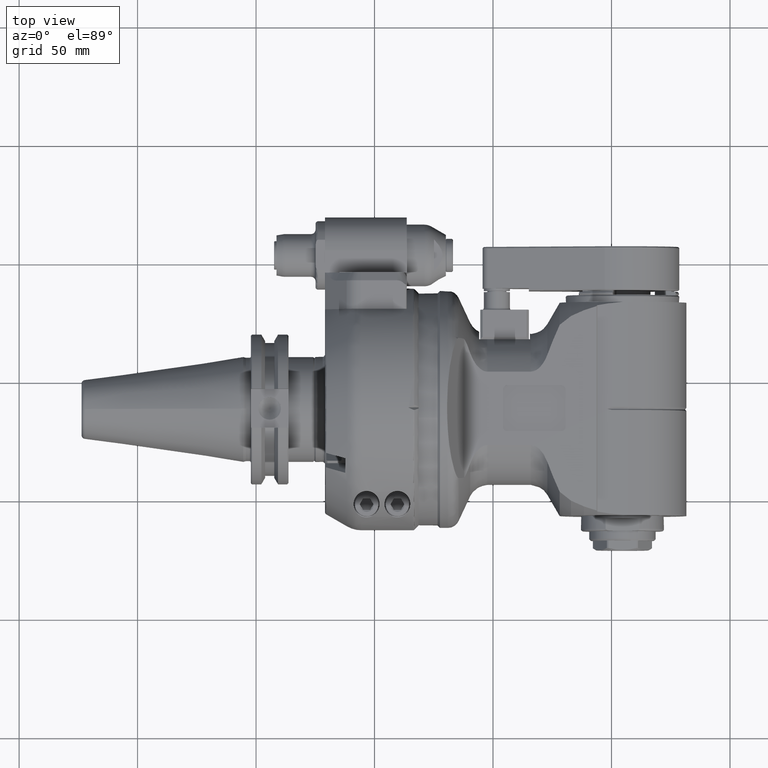
[diagram: clean part render]
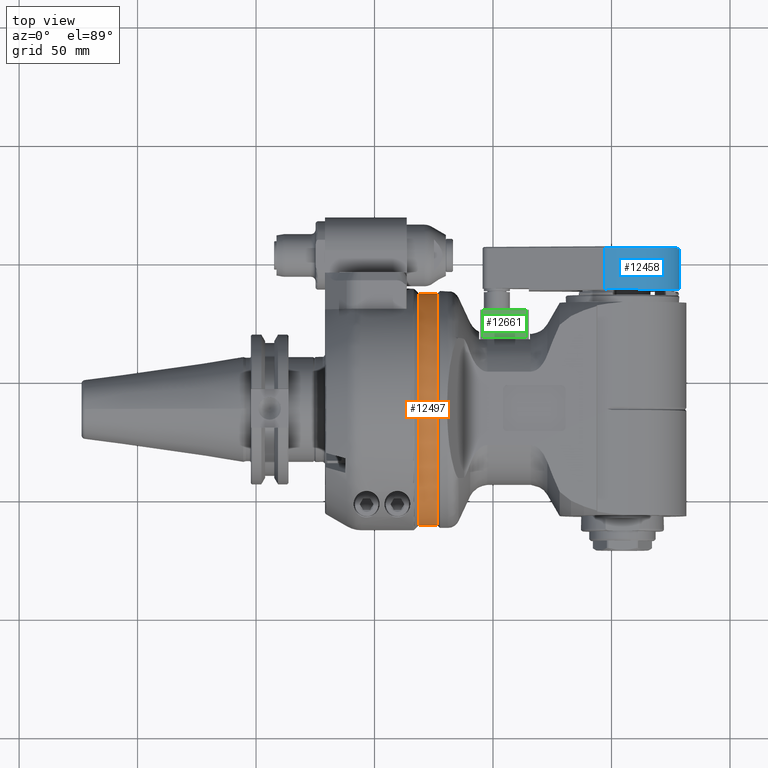
[diagram: same view with three faces highlighted in distinct colors, each labeled with its STEP entity id]
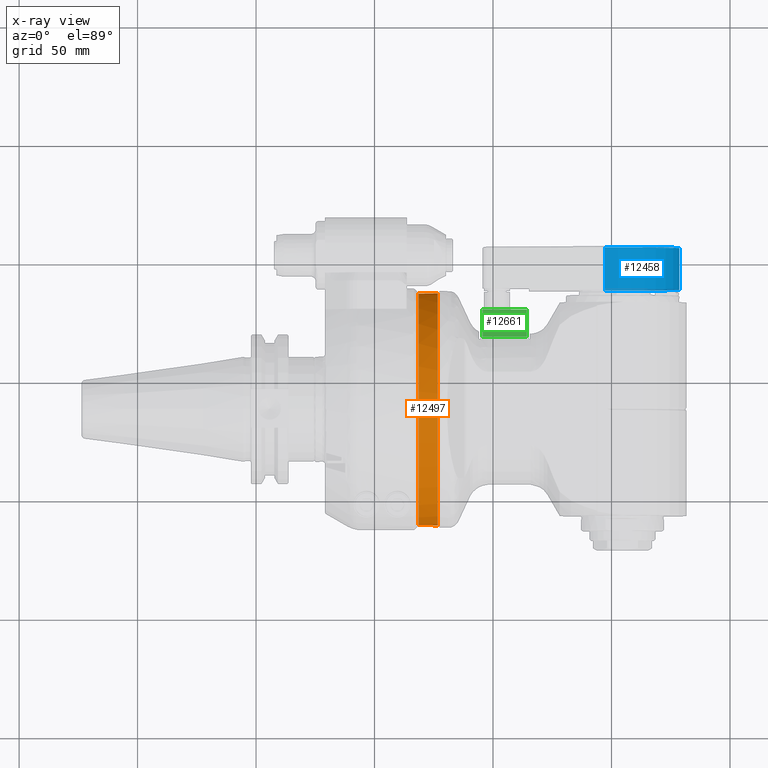
[diagram: x-ray of the same camera — body ghosted, the three highlighted faces saturated]
A machine part, top view with three faces highlighted in distinct colors.
The next image is the same camera in x-ray (body ghosted, the three faces saturated) — at least one of them is partly hidden behind the body in this view.
Their STEP definitions:

[orange] entity #12497 — the highlighted cylindrical surface (bore or boss wall) has radius 49 mm, axis along (1, 0, 0).
#918=CYLINDRICAL_SURFACE('',#13781,49.);
#1201=CIRCLE('',#13779,49.);
#1202=CIRCLE('',#13780,49.);
#1203=CIRCLE('',#13782,49.);
#1930=FACE_OUTER_BOUND('',#2721,.T.);
#2721=EDGE_LOOP('',(#8760,#8761,#8762,#8763,#8764));
#3676=LINE('',#20074,#4521);
#4521=VECTOR('',#15654,49.);
#5430=VERTEX_POINT('',#20067);
#5431=VERTEX_POINT('',#20069);
#5432=VERTEX_POINT('',#20073);
#6732=EDGE_CURVE('',#5430,#5431,#1201,.T.);
#6733=EDGE_CURVE('',#5431,#5430,#1202,.T.);
#6734=EDGE_CURVE('',#5431,#5432,#3676,.T.);
#6735=EDGE_CURVE('',#5432,#5432,#1203,.T.);
#8760=ORIENTED_EDGE('',*,*,#6733,.F.);
#8761=ORIENTED_EDGE('',*,*,#6734,.T.);
#8762=ORIENTED_EDGE('',*,*,#6735,.F.);
#8763=ORIENTED_EDGE('',*,*,#6734,.F.);
#8764=ORIENTED_EDGE('',*,*,#6732,.F.);
#12497=ADVANCED_FACE('',(#1930),#918,.T.);
#13779=AXIS2_PLACEMENT_3D('',#20070,#15648,#15649);
#13780=AXIS2_PLACEMENT_3D('',#20071,#15650,#15651);
#13781=AXIS2_PLACEMENT_3D('',#20072,#15652,#15653);
#13782=AXIS2_PLACEMENT_3D('',#20075,#15655,#15656);
#15648=DIRECTION('center_axis',(1.,0.,0.));
#15649=DIRECTION('ref_axis',(0.,-1.,0.));
#15650=DIRECTION('center_axis',(1.,0.,0.));
#15651=DIRECTION('ref_axis',(0.,-1.,0.));
#15652=DIRECTION('center_axis',(1.,0.,0.));
#15653=DIRECTION('ref_axis',(0.,0.0871557427476639,-0.996194698091745));
#15654=DIRECTION('',(-1.,0.,0.));
#15655=DIRECTION('center_axis',(-1.,0.,0.));
#15656=DIRECTION('ref_axis',(0.,-0.0871557427476639,0.996194698091745));
#20067=CARTESIAN_POINT('',(12.,49.,6.00076931582203E-15));
#20069=CARTESIAN_POINT('',(12.,-4.270631394635,48.8135402065));
#20070=CARTESIAN_POINT('Origin',(12.,0.,0.));
#20071=CARTESIAN_POINT('Origin',(12.,0.,0.));
#20072=CARTESIAN_POINT('Origin',(8.1,0.,0.));
#20073=CARTESIAN_POINT('',(4.000000000002,-4.270631394635,48.8135402065));
#20074=CARTESIAN_POINT('',(8.1,-4.27063139463554,48.8135402064955));
#20075=CARTESIAN_POINT('Origin',(4.000000000002,0.,0.));

[blue] entity #12458 — the highlighted cylindrical surface (partial cylindrical patch) has radius 24 mm, axis along (-0, 1, -0).
#908=CYLINDRICAL_SURFACE('',#13693,24.);
#1159=CIRCLE('',#13688,24.);
#1160=CIRCLE('',#13694,24.);
#1891=FACE_OUTER_BOUND('',#2674,.T.);
#2674=EDGE_LOOP('',(#8512,#8513,#8514,#8515));
#3611=LINE('',#19450,#4456);
#3612=LINE('',#19454,#4457);
#4456=VECTOR('',#15409,17.5);
#4457=VECTOR('',#15414,17.5);
#5306=VERTEX_POINT('',#19425);
#5307=VERTEX_POINT('',#19427);
#5314=VERTEX_POINT('',#19448);
#5315=VERTEX_POINT('',#19453);
#6566=EDGE_CURVE('',#5307,#5306,#1159,.T.);
#6578=EDGE_CURVE('',#5306,#5314,#3611,.T.);
#6579=EDGE_CURVE('',#5315,#5307,#3612,.T.);
#6580=EDGE_CURVE('',#5315,#5314,#1160,.T.);
#8512=ORIENTED_EDGE('',*,*,#6579,.T.);
#8513=ORIENTED_EDGE('',*,*,#6566,.T.);
#8514=ORIENTED_EDGE('',*,*,#6578,.T.);
#8515=ORIENTED_EDGE('',*,*,#6580,.F.);
#12458=ADVANCED_FACE('',(#1891),#908,.T.);
#13688=AXIS2_PLACEMENT_3D('',#19428,#15390,#15391);
#13693=AXIS2_PLACEMENT_3D('',#19452,#15412,#15413);
#13694=AXIS2_PLACEMENT_3D('',#19455,#15415,#15416);
#15390=DIRECTION('center_axis',(0.,1.,0.));
#15391=DIRECTION('ref_axis',(-0.309016994374891,0.,0.951056516295172));
#15409=DIRECTION('',(0.,1.,0.));
#15412=DIRECTION('center_axis',(0.,1.,0.));
#15413=DIRECTION('ref_axis',(1.,0.,0.));
#15414=DIRECTION('',(0.,-1.,0.));
#15415=DIRECTION('center_axis',(0.,1.,0.));
#15416=DIRECTION('ref_axis',(-0.309016994374891,0.,0.951056516295172));
#19425=CARTESIAN_POINT('',(82.583592135,50.5,-22.82535639108));
#19427=CARTESIAN_POINT('',(82.583592135,50.5,22.82535639108));
#19428=CARTESIAN_POINT('Origin',(90.,50.5,0.));
#19448=CARTESIAN_POINT('',(82.583592135,68.,-22.82535639108));
#19450=CARTESIAN_POINT('',(82.583592135,50.5,-22.82535639108));
#19452=CARTESIAN_POINT('Origin',(90.,50.,0.));
#19453=CARTESIAN_POINT('',(82.583592135,68.,22.82535639108));
#19454=CARTESIAN_POINT('',(82.583592135,68.,22.82535639108));
#19455=CARTESIAN_POINT('Origin',(90.,68.,0.));

[green] entity #12661 — the highlighted planar face has unit normal (0, -0, -1).
#2094=FACE_OUTER_BOUND('',#2905,.T.);
#2905=EDGE_LOOP('',(#9497,#9498,#9499,#9500));
#3638=LINE('',#19544,#4483);
#3643=LINE('',#19554,#4488);
#3646=LINE('',#19560,#4491);
#3821=LINE('',#20964,#4666);
#4483=VECTOR('',#15512,18.5);
#4488=VECTOR('',#15521,11.5);
#4491=VECTOR('',#15526,18.5);
#4666=VECTOR('',#16409,11.5);
#5342=VERTEX_POINT('',#19541);
#5343=VERTEX_POINT('',#19543);
#5346=VERTEX_POINT('',#19553);
#5348=VERTEX_POINT('',#19559);
#6622=EDGE_CURVE('',#5343,#5342,#3638,.T.);
#6627=EDGE_CURVE('',#5343,#5346,#3643,.T.);
#6630=EDGE_CURVE('',#5348,#5346,#3646,.T.);
#7068=EDGE_CURVE('',#5342,#5348,#3821,.T.);
#9497=ORIENTED_EDGE('',*,*,#6622,.T.);
#9498=ORIENTED_EDGE('',*,*,#7068,.T.);
#9499=ORIENTED_EDGE('',*,*,#6630,.T.);
#9500=ORIENTED_EDGE('',*,*,#6627,.F.);
#12217=PLANE('',#14087);
#12661=ADVANCED_FACE('',(#2094),#12217,.F.);
#14087=AXIS2_PLACEMENT_3D('',#20965,#16410,#16411);
#15512=DIRECTION('',(-1.,0.,0.));
#15521=DIRECTION('',(0.,-1.,0.));
#15526=DIRECTION('',(1.,0.,0.));
#16409=DIRECTION('',(0.,-1.,0.));
#16410=DIRECTION('center_axis',(0.,0.,-1.));
#16411=DIRECTION('ref_axis',(1.,0.,0.));
#19541=CARTESIAN_POINT('',(30.99999995534,41.9,12.99999983062));
#19543=CARTESIAN_POINT('',(49.49999995534,41.9,12.99999983062));
#19544=CARTESIAN_POINT('',(49.49999995534,41.9,12.99999983062));
#19553=CARTESIAN_POINT('',(49.49999995534,30.4,12.99999983062));
#19554=CARTESIAN_POINT('',(49.49999995534,41.9,12.99999983062));
#19559=CARTESIAN_POINT('',(30.99999995534,30.4,12.99999983062));
#19560=CARTESIAN_POINT('',(30.99999995534,30.4,12.99999983062));
#20964=CARTESIAN_POINT('',(30.99999995534,41.9,12.99999983062));
#20965=CARTESIAN_POINT('Origin',(34.06217773717,28.9,12.99999983062));